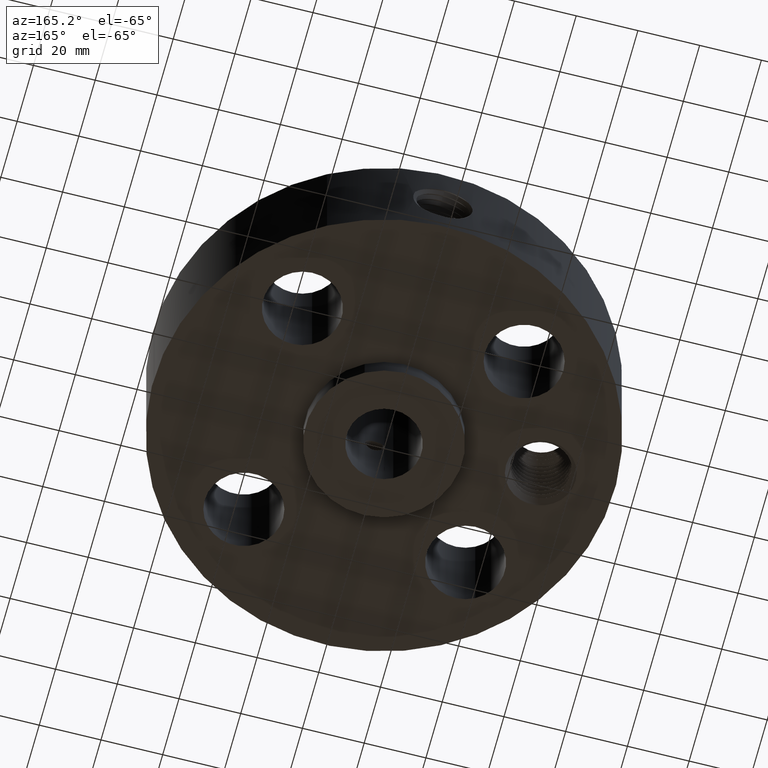
[diagram: clean part render]
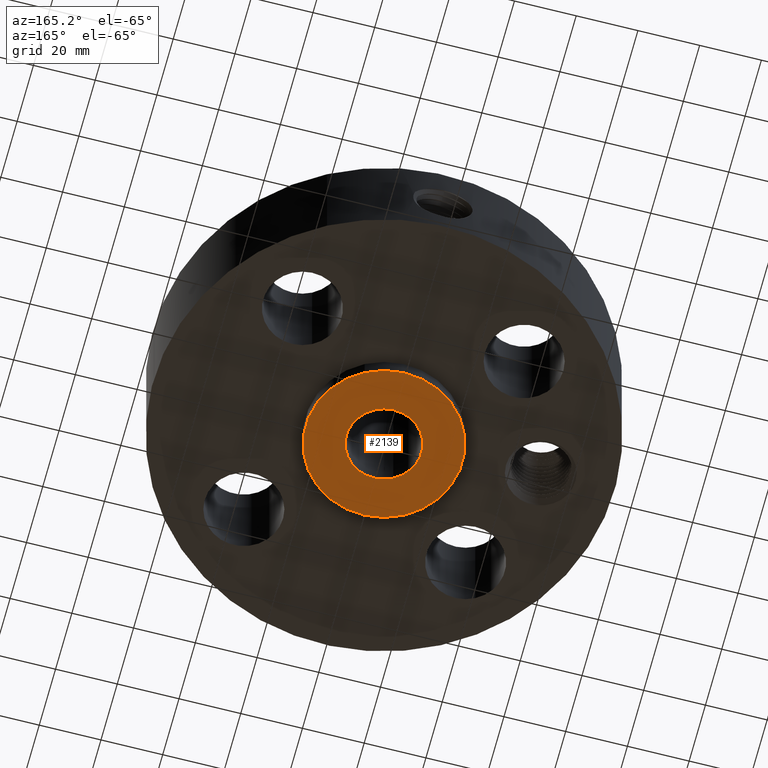
[diagram: same view with one face highlighted and labeled with its STEP entity id]
A machine part, auxiliary view. The second image highlights one B-rep face of the part: STEP entity #2139.
In plain terms, the highlighted planar face has unit normal (0, 0, -1).
Its self-contained STEP definition (entity closure, byte-faithful):
#1116=AXIS2_PLACEMENT_3D('Circle Axis2P3D',#1114,#1115,$) ;
#1142=AXIS2_PLACEMENT_3D('Circle Axis2P3D',#1140,#1141,$) ;
#2115=AXIS2_PLACEMENT_3D('Plane Axis2P3D',#2112,#2113,#2114) ;
#2123=AXIS2_PLACEMENT_3D('Circle Axis2P3D',#2121,#2122,$) ;
#2132=AXIS2_PLACEMENT_3D('Circle Axis2P3D',#2130,#2131,$) ;
#1114=CARTESIAN_POINT('Axis2P3D Location',(0.,0.,0.)) ;
#1118=CARTESIAN_POINT('Vertex',(0.479425538606,0.877582561894,0.)) ;
#1120=CARTESIAN_POINT('Vertex',(-0.479425538606,-0.877582561894,0.)) ;
#1140=CARTESIAN_POINT('Axis2P3D Location',(0.,0.,0.)) ;
#2112=CARTESIAN_POINT('Axis2P3D Location',(0.,0.478500000002,0.)) ;
#2121=CARTESIAN_POINT('Axis2P3D Location',(0.,0.,0.)) ;
#2125=CARTESIAN_POINT('Vertex',(0.229405120223,0.419923255866,-2.79741234551E-015)) ;
#2127=CARTESIAN_POINT('Vertex',(-0.229405120223,-0.419923255866,-2.79741234551E-015)) ;
#2130=CARTESIAN_POINT('Axis2P3D Location',(0.,0.,0.)) ;
#1115=DIRECTION('Axis2P3D Direction',(0.,0.,-0.0393700787402)) ;
#1141=DIRECTION('Axis2P3D Direction',(0.,0.,-0.0393700787402)) ;
#2113=DIRECTION('Axis2P3D Direction',(0.,0.,-0.0393700787402)) ;
#2114=DIRECTION('Axis2P3D XDirection',(0.0393700787402,0.,0.)) ;
#2122=DIRECTION('Axis2P3D Direction',(0.,0.,-0.0393700787402)) ;
#2131=DIRECTION('Axis2P3D Direction',(0.,0.,-0.0393700787402)) ;
#2118=ORIENTED_EDGE('',*,*,#1144,.T.) ;
#2119=ORIENTED_EDGE('',*,*,#1122,.T.) ;
#2136=ORIENTED_EDGE('',*,*,#2129,.F.) ;
#2137=ORIENTED_EDGE('',*,*,#2134,.F.) ;
#2138=FACE_BOUND('',#2135,.T.) ;
#2139=ADVANCED_FACE('PartBody',(#2120,#2138),#2116,.T.) ;
#1117=CIRCLE('generated circle',#1116,1.) ;
#1143=CIRCLE('generated circle',#1142,1.) ;
#2124=CIRCLE('generated circle',#2123,0.478500000002) ;
#2133=CIRCLE('generated circle',#2132,0.478500000002) ;
#1122=EDGE_CURVE('',#1119,#1121,#1117,.T.) ;
#1144=EDGE_CURVE('',#1121,#1119,#1143,.T.) ;
#2129=EDGE_CURVE('',#2126,#2128,#2124,.T.) ;
#2134=EDGE_CURVE('',#2128,#2126,#2133,.T.) ;
#2117=EDGE_LOOP('',(#2118,#2119)) ;
#2135=EDGE_LOOP('',(#2136,#2137)) ;
#2120=FACE_OUTER_BOUND('',#2117,.T.) ;
#2116=PLANE('',#2115) ;
#1119=VERTEX_POINT('',#1118) ;
#1121=VERTEX_POINT('',#1120) ;
#2126=VERTEX_POINT('',#2125) ;
#2128=VERTEX_POINT('',#2127) ;